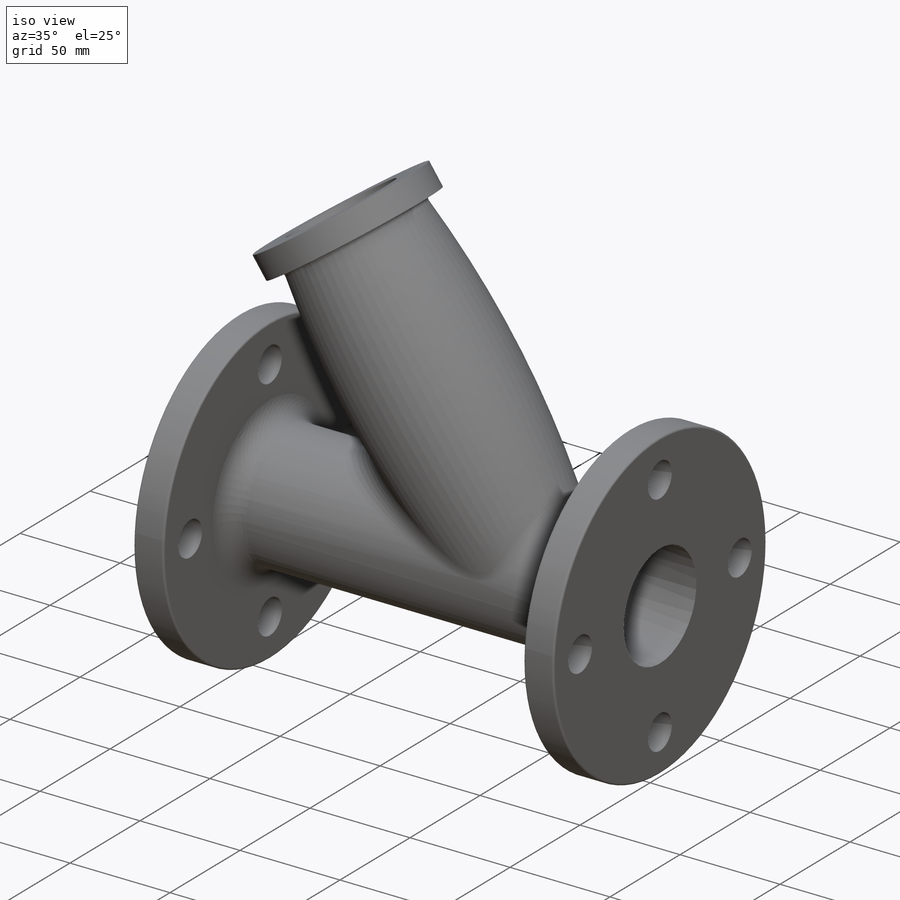
[diagram: iso view]
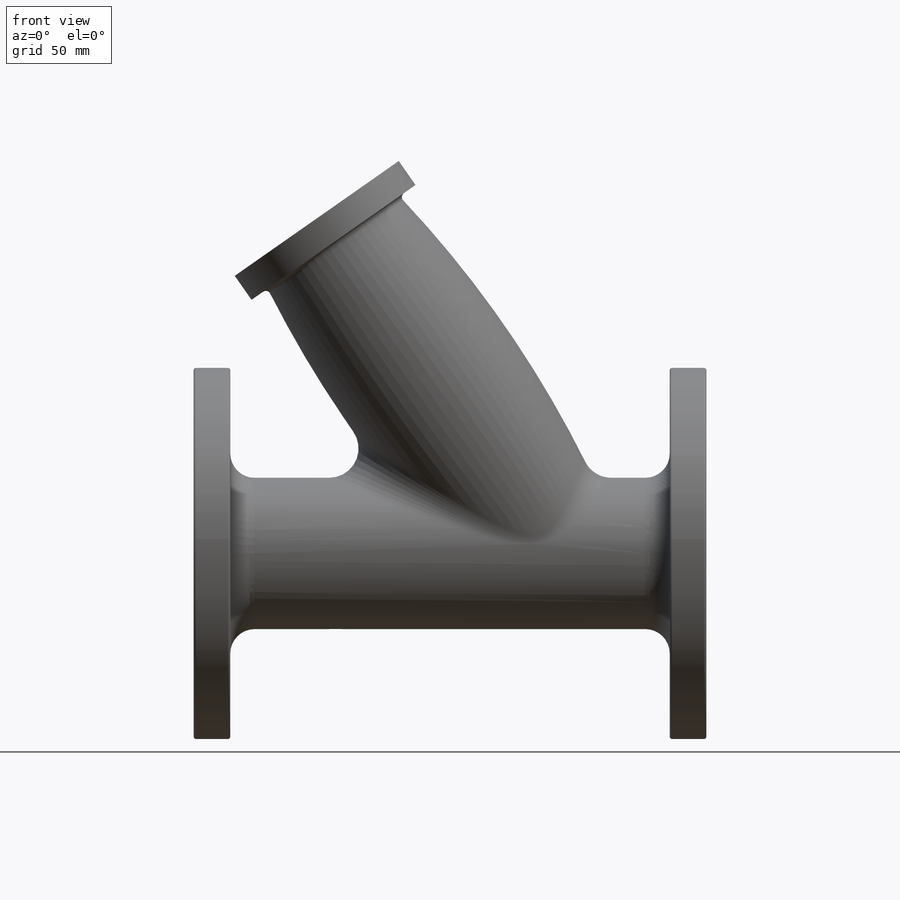
[diagram: front view]
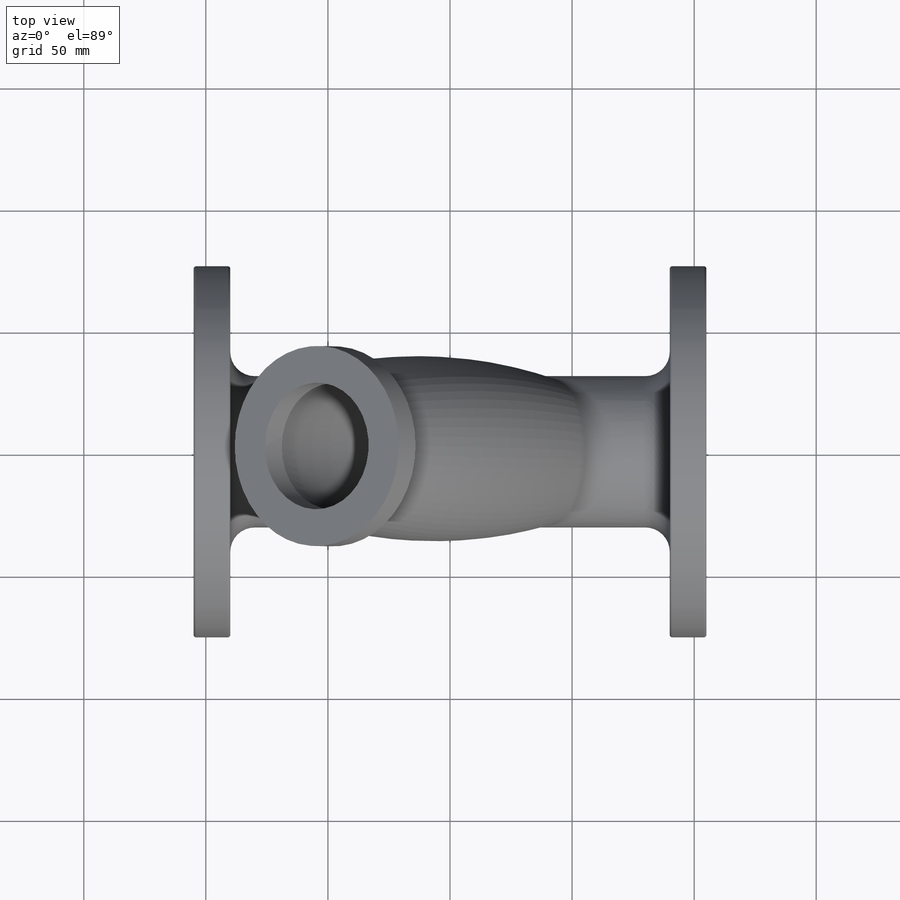
[diagram: top view]
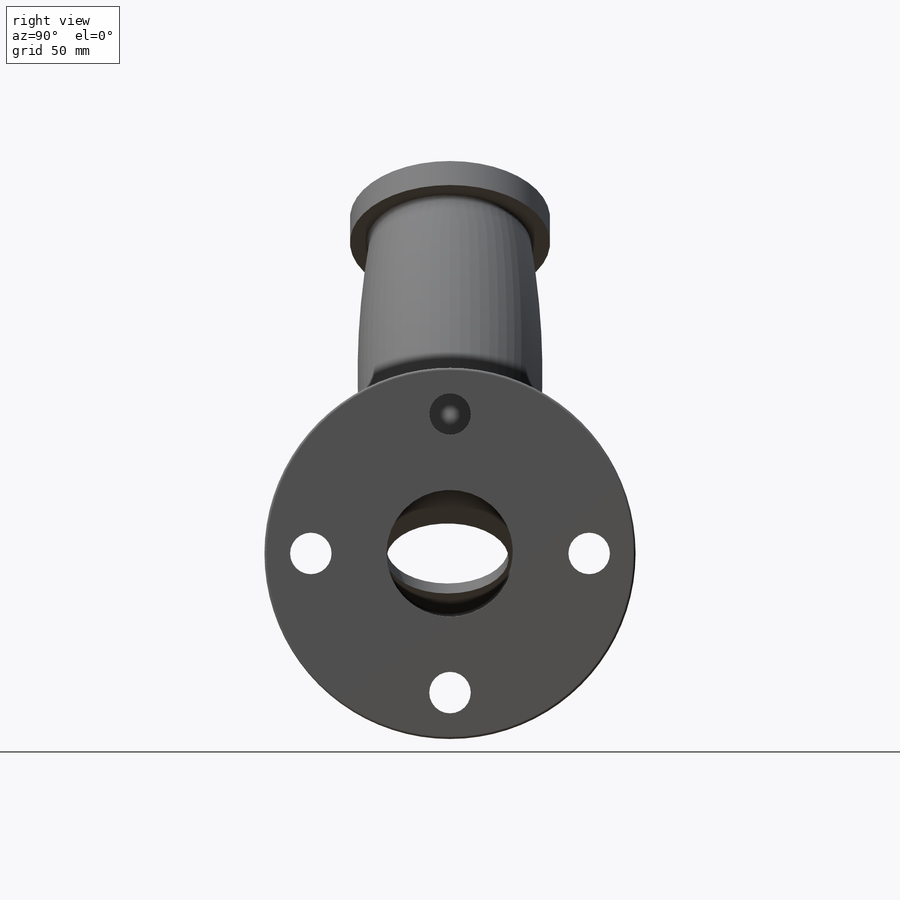
[diagram: right view]
SOLIDWORKS PART (.sldprt)
format: sldprt  version: not decoded by parser v0  size: 884,736 bytes
history: native  units: mm
features: sketch x10, fillet x10, cut_extrude x5, revolve x2, extrude x2, material x1, pattern_circular x1, mirror x1, plane x1 (+13 scaffold rows collapsed)
feature tree (46):
  scaffold x13  (default folders/planes/origin — collapsed)
  material  "Material <not specified>"
  sketch  "Sketch1"  dims[D1=152.0mm D2=210.0mm D3=15.0mm D4=62.0mm D5=180.0mm]
  revolve  "Revolve1"  Angle=360deg
  sketch  "Sketch2"  dims[c1.D4=450.0mm c1.D9=~280.60938mm c1.D8=450.0mm c1.D1=~347.703773mm c2.D1=~27.578745deg c3.D1=40.0mm c3.D2=~347.703773mm c4.D2=60.0deg c4.D1=50.0mm c5.D2=~89.582284mm c6.D2=55.0deg c6.D3=150.0mm c6.D5=62.0mm c6.D6=50.0mm c6.D7=62.0mm c7.D5=62.0mm c7.D3=156.5mm c7.D7=152.5mm c7.D1=70.0mm c7.D6=30.0mm c8.D1=80.0mm c8.D6=55.5mm c8.D8=7.5mm c8.D7=~52.642623mm c8.D4=~51.83648mm c9.D6=55.0mm c9.D8=5.0mm c9.D4=5.0mm c9.D7=5.0mm c10.D8=20.0mm c10.D9=29.5mm c10.D7=5.0mm c10.D3=25.0mm c10.D4=10.0mm c11.D7=~55.297013mm c11.D3=~50.493228mm c11.D1=62.0mm c11.D4=25.0mm c12.D7=17.0mm c12.D6=~54.661176mm c12.D1=58.0mm c13.D6=155.0mm c13.D9=~41.501065mm c13.D7=5.0mm c13.D8=20.0mm c14.D7=5.0mm c14.D1=5.0mm c14.D3=5.0mm c15.D7=25.0mm c15.D4=30.0mm c15.D1=5.0mm c15.D3=5.0mm]
  revolve  "Revolve3"  Angle=360deg
  fillet  "Fillet21"  Radius=12mm
  sketch  "Sketch21"  dims[D1=114.0mm D2=17.0mm]
  cut_extrude  "Cut-Extrude5"  Depth=15mm
  pattern_circular  "CirPattern1"  Count=4 Angle=360deg
  mirror  "Mirror3"
  sketch  "Sketch24"  dims[D1=52.0mm]
  cut_extrude  "Cut-Extrude13"  [1 undecoded]
  sketch  "3DSketch11"  dims[D1=0.0mm]
  cut_extrude  "Cut-Extrude25"  Depth=3mm
  sketch  "3DSketch15"  dims[D1=0.0mm]
  cut_extrude  "Cut-Extrude30"  Depth=12mm
  plane  "Plane3"
  sketch  "Sketch28"  dims[c1.D1=51.0mm c1.D2=51.0mm c1.D3=~147.799909mm c2.D3=90.0deg c3.D3=24.0mm c3.D4=29.0mm c3.D5=210.0mm c4.D5=35.0deg c4.D6=~6.103873mm c4.D3=5.0mm c4.D4=5.0mm]
  extrude  "Boss-Extrude3"  [1 undecoded]
  sketch  "3DSketch16"  dims[D1=0.0mm]
  sketch  "Sketch30"  dims[c1.D1=50.0mm c1.D2=2.0mm c1.D3=33.96mm c2.D2=1.0mm]
  cut_extrude  "Cut-Extrude31"  Depth=12mm
  fillet  "Fillet22"  Radius=6mm
  fillet  "Fillet23"  Radius=4mm
  fillet  "Fillet24"  Radius=4mm
  fillet  "Fillet25"  Radius=10mm
  fillet  "Fillet26"  Radius=1mm
  fillet  "Fillet27"  Radius=1mm
  fillet  "Fillet28"  Radius=1mm
  sketch  "Sketch31"  dims[D1=82.0mm]
  extrude  "Boss-Extrude4"  Depth=12mm
  fillet  "Fillet29"  Radius=2mm
  fillet  "Fillet30"  Radius=1mm
decode coverage: 28 of 31 modeling features carry decoded parameters
note: ~ marks probable driven/reference dimensions
note: 2 parameter values undecoded
note: suppression state not decoded; provenance and decode notes live in map.json
